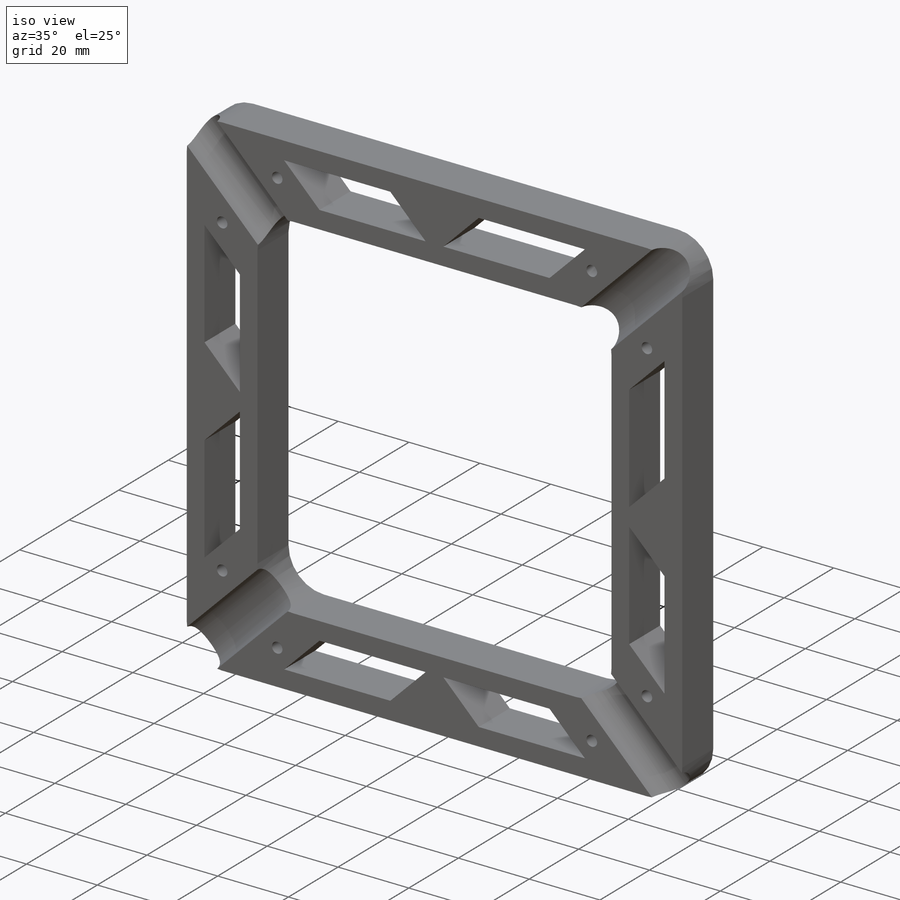
[diagram: iso view]
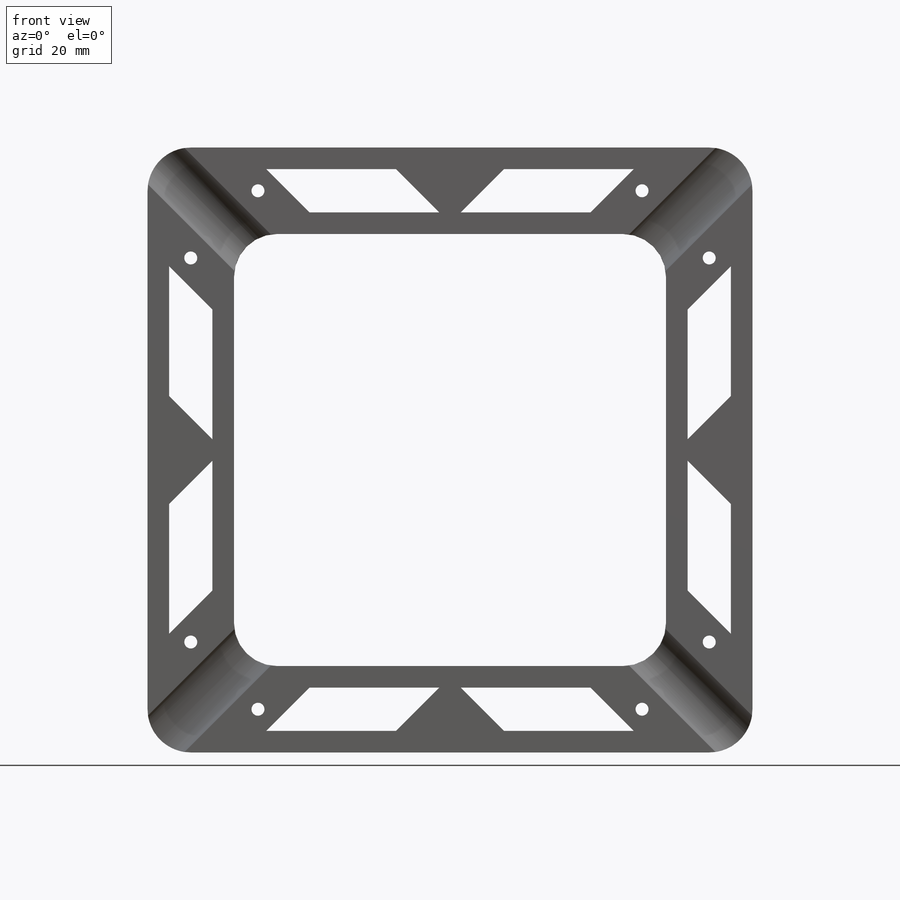
[diagram: front view]
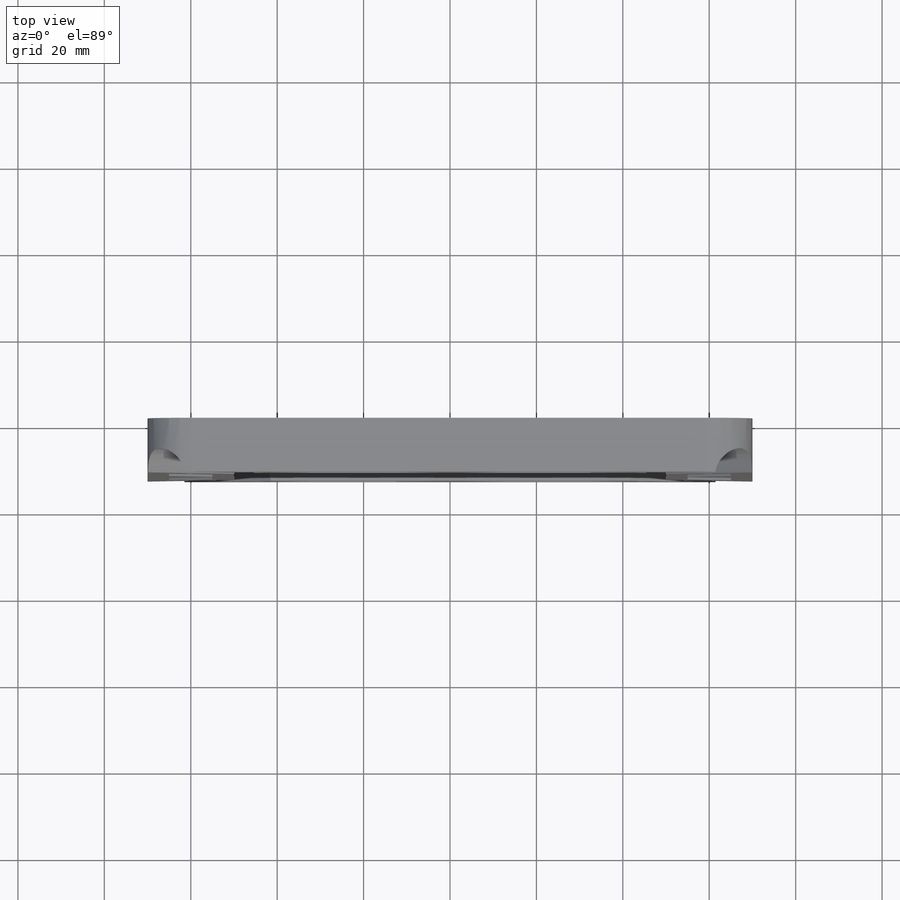
[diagram: top view]
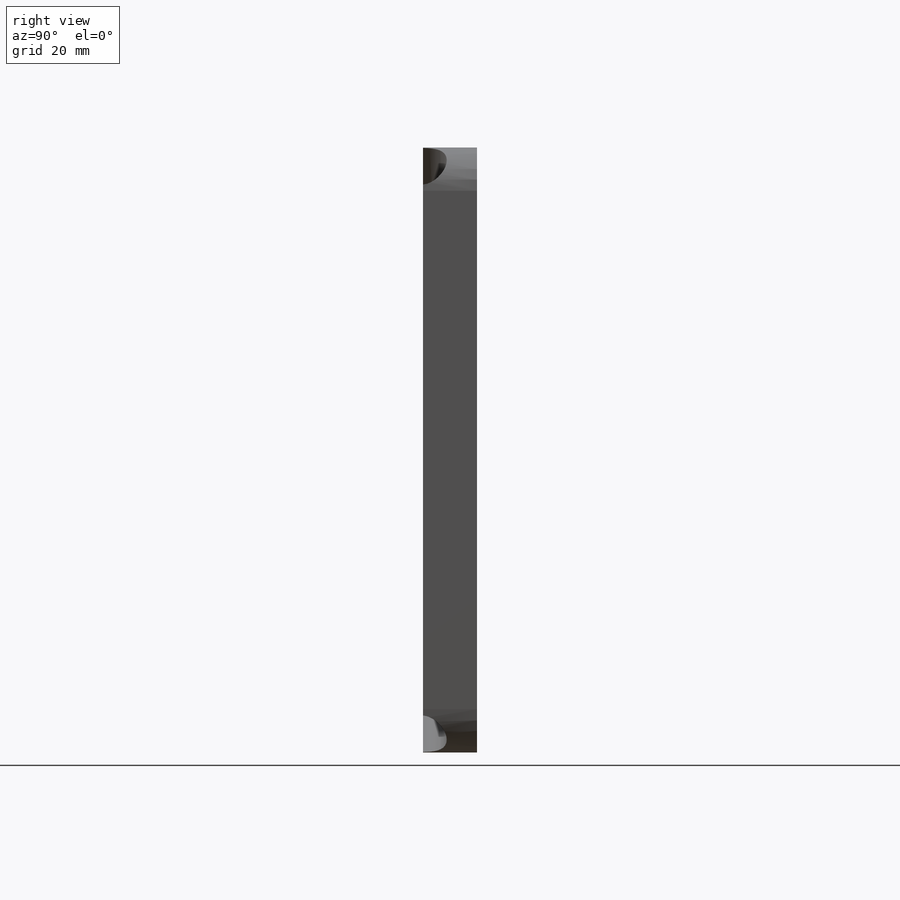
[diagram: right view]
SOLIDWORKS PART (.sldprt)
format: sldprt  version: not decoded by parser v0  size: 282,624 bytes
history: native  units: mm
features: plane x4, sketch x3, cut_extrude x2, material x1, extrude x1, pattern_circular x1, fillet x1 (+8 scaffold rows collapsed)
feature tree (21):
  scaffold x8  (default folders/planes/origin — collapsed)
  material  "Matériau <non spécifié>"
  plane  "Plan de face"
  plane  "Plan de dessus"
  plane  "Plan de droite"
  sketch  "Esquisse1"  dims[D1=140.0mm D2=140.0mm D3=70.0mm D4=70.0mm D5=20.0mm D6=20.0mm D7=100.0mm D8=100.0mm D9=5.0mm D10=5.0mm D11=2.5mm D12=12.5mm D13=30.0mm D14=30.0mm D15=30.0mm D16=30.0mm D17=4.0]
  extrude  "Boss.-Extru.1"  Depth=12.5mm
  plane  "Plan1"
  sketch  "Esquisse2"  dims[D2=~6.073163mm D1=13.0mm]
  cut_extrude  "Enlèv. mat.-Extru.1"  Depth=100mm
  pattern_circular  "Répétition circulaire1"  Count=2 Angle=90deg
  fillet  "Congé1"  Radius=10mm
  sketch  "Esquisse3"  dims[D1=3.0mm D2=3.0mm D3=10.0mm D4=10.0mm D5=11.0mm D6=11.0mm D7=4.0]
  cut_extrude  "Enlèv. mat.-Extru.2"  Depth=13mm
decode coverage: 8 of 8 modeling features carry decoded parameters
note: ~ marks probable driven/reference dimensions
note: suppression state not decoded; provenance and decode notes live in map.json
